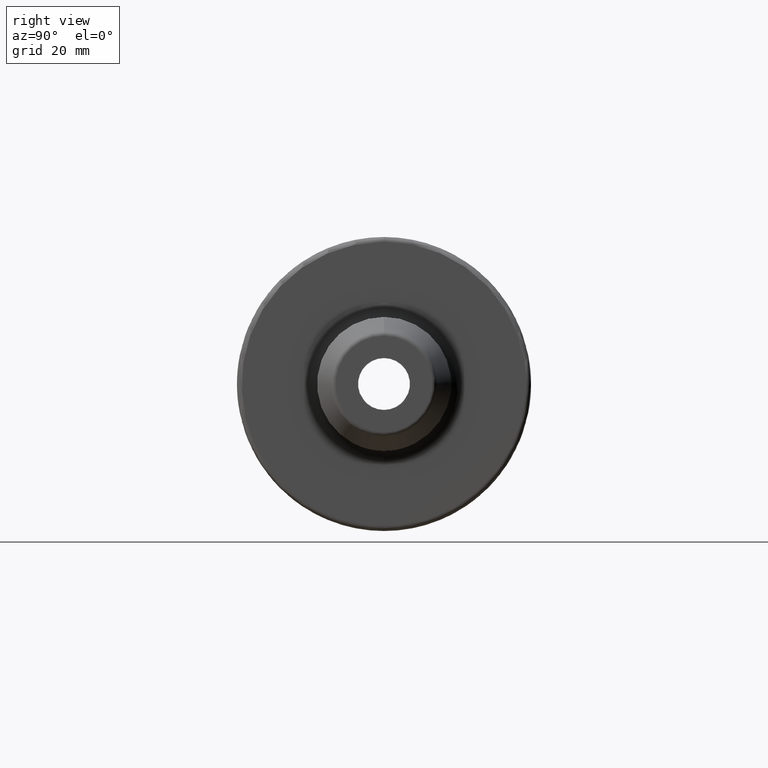
[diagram: clean part render]
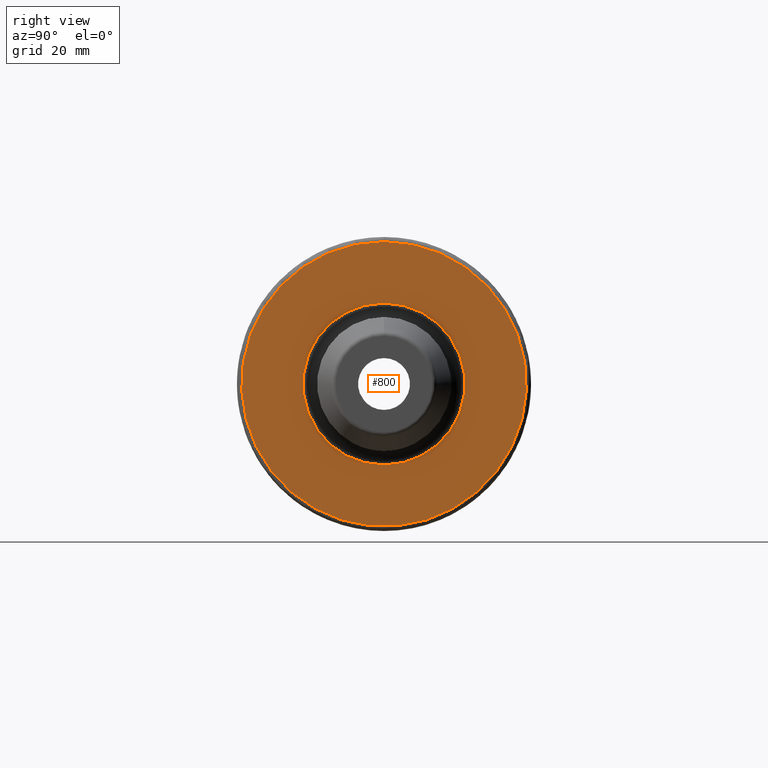
[diagram: same view with one face highlighted and labeled with its STEP entity id]
A machine part, right view. The second image highlights one B-rep face of the part: STEP entity #800.
In plain terms, the highlighted planar face has unit normal (1, 0, 0).
Its self-contained STEP definition (entity closure, byte-faithful):
#20=PLANE('',#880);
#54=FACE_BOUND('',#187,.T.);
#67=CIRCLE('',#879,17.35);
#68=CIRCLE('',#881,30.5);
#135=FACE_OUTER_BOUND('',#186,.T.);
#186=EDGE_LOOP('',(#576));
#187=EDGE_LOOP('',(#577));
#354=VERTEX_POINT('',#1453);
#355=VERTEX_POINT('',#1457);
#439=EDGE_CURVE('',#354,#354,#67,.T.);
#440=EDGE_CURVE('',#355,#355,#68,.T.);
#576=ORIENTED_EDGE('',*,*,#440,.T.);
#577=ORIENTED_EDGE('',*,*,#439,.F.);
#800=ADVANCED_FACE('',(#135,#54),#20,.T.);
#879=AXIS2_PLACEMENT_3D('',#1455,#1001,#1002);
#880=AXIS2_PLACEMENT_3D('',#1456,#1003,#1004);
#881=AXIS2_PLACEMENT_3D('',#1458,#1005,#1006);
#1001=DIRECTION('center_axis',(1.,0.,0.));
#1002=DIRECTION('ref_axis',(0.,-1.22464679914735E-16,1.));
#1003=DIRECTION('center_axis',(1.,0.,0.));
#1004=DIRECTION('ref_axis',(0.,0.,-1.));
#1005=DIRECTION('center_axis',(1.,0.,0.));
#1006=DIRECTION('ref_axis',(0.,0.,-1.));
#1453=CARTESIAN_POINT('',(27.,4.24952439304131E-15,-17.35));
#1455=CARTESIAN_POINT('Origin',(27.,0.,0.));
#1456=CARTESIAN_POINT('Origin',(27.,0.,0.));
#1457=CARTESIAN_POINT('',(27.,-3.73517273739943E-15,30.5));
#1458=CARTESIAN_POINT('Origin',(27.,0.,0.));